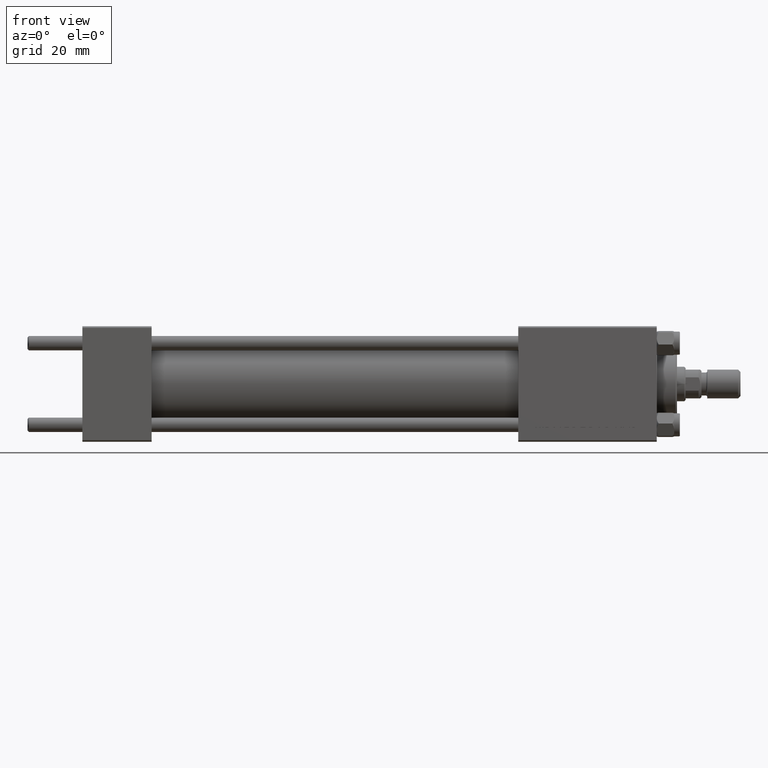
[diagram: clean part render]
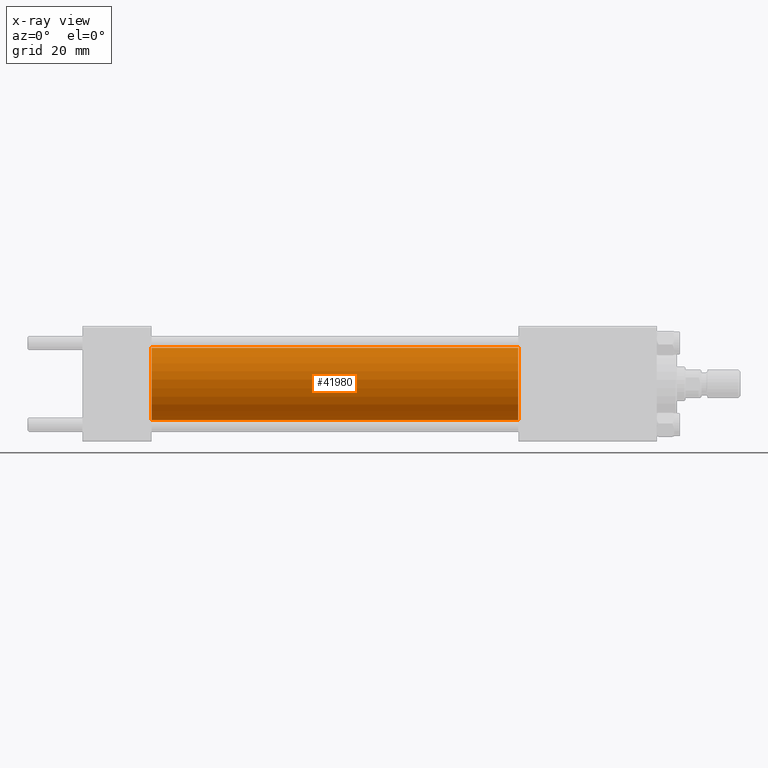
[diagram: x-ray — body ghosted, one internal face saturated and labeled with its STEP entity id]
A machine part, front view, then the same camera in x-ray: the body is ghosted and one INTERNAL B-rep face — a face not visible from any outside direction — is saturated and labeled: STEP entity #41980.
In plain terms, the highlighted cylindrical surface (edge-blend (fillet) strip) has radius 12.5 mm, axis along (-1, -0, -0).
Its self-contained STEP definition (entity closure, byte-faithful):
#215 = CARTESIAN_POINT ( 'NONE',  ( 24.00000000000000000, 1.530808498934191127E-15, -12.49999999999999645 ) ) ;
#1933 = VERTEX_POINT ( 'NONE', #50127 ) ;
#4428 = EDGE_CURVE ( 'NONE', #1933, #16467, #28392, .T. ) ;
#8487 = DIRECTION ( 'NONE',  ( -1.000000000000000000, -0.000000000000000000, -0.000000000000000000 ) ) ;
#9308 = CARTESIAN_POINT ( 'NONE',  ( 151.0000000000000000, 0.000000000000000000, 0.000000000000000000 ) ) ;
#10445 = EDGE_LOOP ( 'NONE', ( #18336, #15275, #33071, #16521 ) ) ;
#10929 = CARTESIAN_POINT ( 'NONE',  ( 151.0000000000000000, 0.000000000000000000, 12.49999999999999645 ) ) ;
#11116 = VERTEX_POINT ( 'NONE', #215 ) ;
#15275 = ORIENTED_EDGE ( 'NONE', *, *, #50362, .T. ) ;
#16467 = VERTEX_POINT ( 'NONE', #24124 ) ;
#16521 = ORIENTED_EDGE ( 'NONE', *, *, #19474, .F. ) ;
#16684 = DIRECTION ( 'NONE',  ( 1.000000000000000000, 0.000000000000000000, 0.000000000000000000 ) ) ;
#18336 = ORIENTED_EDGE ( 'NONE', *, *, #4428, .T. ) ;
#19210 = CARTESIAN_POINT ( 'NONE',  ( 151.0000000000000000, 0.000000000000000000, 0.000000000000000000 ) ) ;
#19474 = EDGE_CURVE ( 'NONE', #1933, #38284, #45837, .T. ) ;
#20711 = CIRCLE ( 'NONE', #45929, 12.49999999999999645 ) ;
#22113 = LINE ( 'NONE', #26681, #22624 ) ;
#22624 = VECTOR ( 'NONE', #49128, 1000.000000000000000 ) ;
#24124 = CARTESIAN_POINT ( 'NONE',  ( 151.0000000000000000, 1.530808498934191127E-15, -12.49999999999999645 ) ) ;
#25095 = DIRECTION ( 'NONE',  ( 1.000000000000000000, 0.000000000000000000, 0.000000000000000000 ) ) ;
#25958 = AXIS2_PLACEMENT_3D ( 'NONE', #9308, #25095, #36575 ) ;
#26462 = DIRECTION ( 'NONE',  ( -1.000000000000000000, -0.000000000000000000, -0.000000000000000000 ) ) ;
#26681 = CARTESIAN_POINT ( 'NONE',  ( 151.0000000000000000, 1.530808498934191127E-15, -12.49999999999999645 ) ) ;
#28392 = CIRCLE ( 'NONE', #25958, 12.49999999999999645 ) ;
#28878 = AXIS2_PLACEMENT_3D ( 'NONE', #19210, #8487, #39336 ) ;
#32824 = VECTOR ( 'NONE', #26462, 1000.000000000000000 ) ;
#33071 = ORIENTED_EDGE ( 'NONE', *, *, #37159, .F. ) ;
#36575 = DIRECTION ( 'NONE',  ( 0.000000000000000000, 0.000000000000000000, -1.000000000000000000 ) ) ;
#36603 = CARTESIAN_POINT ( 'NONE',  ( 24.00000000000000000, 0.000000000000000000, 12.49999999999999645 ) ) ;
#37159 = EDGE_CURVE ( 'NONE', #38284, #11116, #20711, .T. ) ;
#38284 = VERTEX_POINT ( 'NONE', #36603 ) ;
#39336 = DIRECTION ( 'NONE',  ( 0.000000000000000000, 0.000000000000000000, 1.000000000000000000 ) ) ;
#41980 = ADVANCED_FACE ( 'NONE', ( #42650 ), #47220, .F. ) ;
#42650 = FACE_OUTER_BOUND ( 'NONE', #10445, .T. ) ;
#45837 = LINE ( 'NONE', #10929, #32824 ) ;
#45929 = AXIS2_PLACEMENT_3D ( 'NONE', #48002, #16684, #48752 ) ;
#47220 = CYLINDRICAL_SURFACE ( 'NONE', #28878, 12.49999999999999645 ) ;
#48002 = CARTESIAN_POINT ( 'NONE',  ( 24.00000000000000000, 0.000000000000000000, 0.000000000000000000 ) ) ;
#48752 = DIRECTION ( 'NONE',  ( 0.000000000000000000, 0.000000000000000000, -1.000000000000000000 ) ) ;
#49128 = DIRECTION ( 'NONE',  ( -1.000000000000000000, -0.000000000000000000, -0.000000000000000000 ) ) ;
#50127 = CARTESIAN_POINT ( 'NONE',  ( 151.0000000000000000, 0.000000000000000000, 12.49999999999999645 ) ) ;
#50362 = EDGE_CURVE ( 'NONE', #16467, #11116, #22113, .T. ) ;